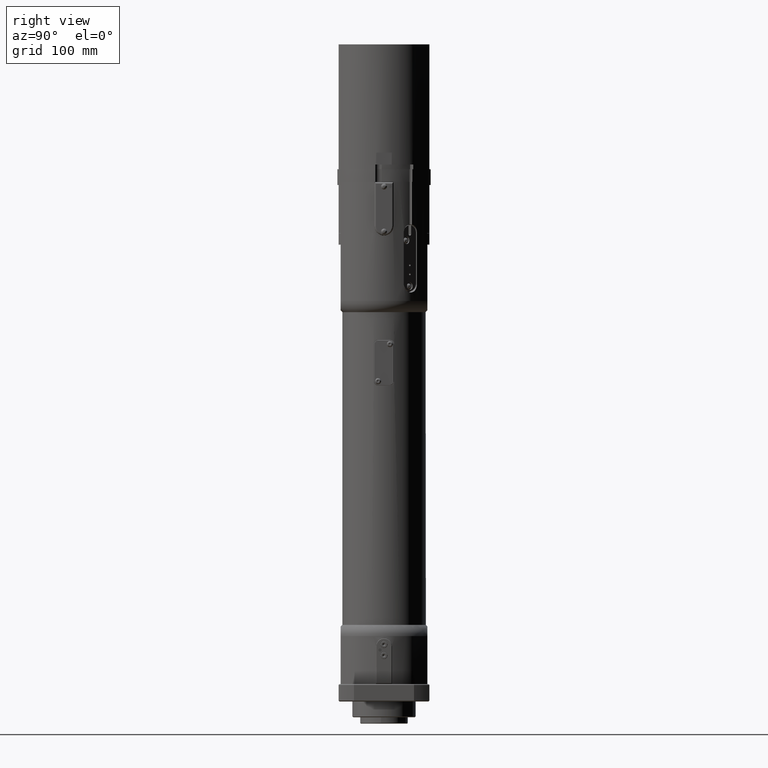
[diagram: clean part render]
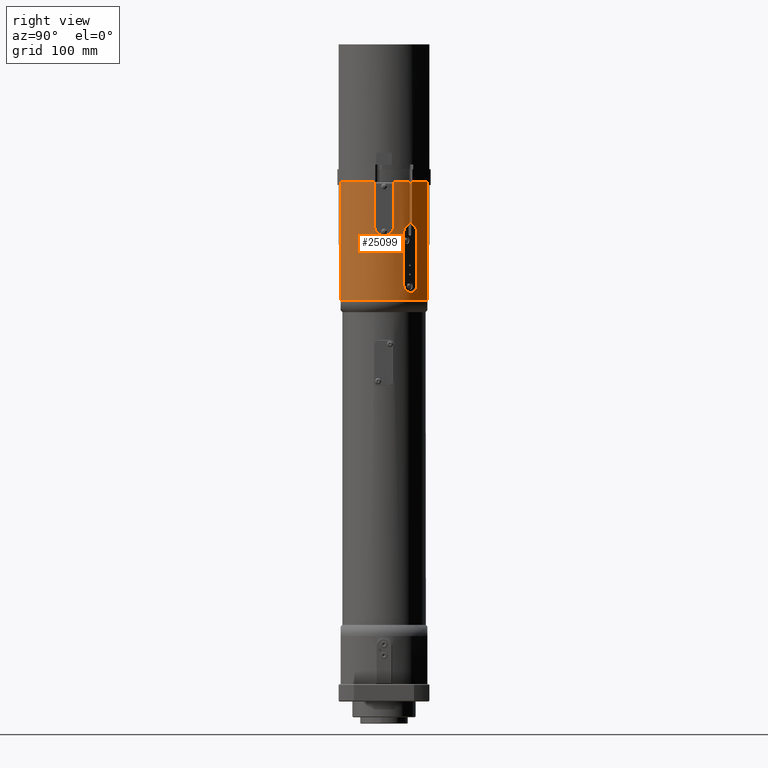
[diagram: same view with one face highlighted and labeled with its STEP entity id]
A machine part, right view. The second image highlights one B-rep face of the part: STEP entity #25099.
In plain terms, the highlighted cylindrical surface (partial cylindrical patch) has radius 59 mm, axis along (0, 0, 1).
Its self-contained STEP definition (entity closure, byte-faithful):
#474=B_SPLINE_CURVE_WITH_KNOTS('',3,(#36116,#36117,#36118,#36119,#36120,
#36121,#36122,#36123,#36124,#36125),.UNSPECIFIED.,.F.,.F.,(4,2,2,2,4),(5.5719923493288,
5.9930536188799,6.45390607613778,6.91489723326674,7.37588839039569),
 .UNSPECIFIED.);
#549=B_SPLINE_CURVE_WITH_KNOTS('',3,(#41970,#41971,#41972,#41973,#41974,
#41975,#41976,#41977,#41978,#41979),.UNSPECIFIED.,.F.,.F.,(4,2,2,2,4),(0.,
0.460991157128959,0.921982314257918,1.38283477151583,1.84368722877374),
 .UNSPECIFIED.);
#550=B_SPLINE_CURVE_WITH_KNOTS('',3,(#41996,#41997,#41998,#41999,#42000,
#42001,#42002,#42003,#42004,#42005),.UNSPECIFIED.,.F.,.F.,(4,2,2,2,4),(3.08042453699075,
3.46548356929964,3.85054260160854,4.23558970354734,4.42463661247969),
 .UNSPECIFIED.);
#551=B_SPLINE_CURVE_WITH_KNOTS('',3,(#42009,#42010,#42011,#42012,#42013,
#42014,#42015,#42016,#42017,#42018),.UNSPECIFIED.,.F.,.F.,(4,2,2,2,4),(-1.54021226849539,
-1.15516516655659,-0.770118064617793,-0.385059032308896,0.),
 .UNSPECIFIED.);
#552=B_SPLINE_CURVE_WITH_KNOTS('',3,(#42020,#42021,#42022,#42023,#42024,
#42025,#42026,#42027,#42028,#42029),.UNSPECIFIED.,.F.,.F.,(4,2,2,2,4),(0.,
0.385059032308893,0.770118064617785,1.15516516655657,1.54021226849536),
 .UNSPECIFIED.);
#553=B_SPLINE_CURVE_WITH_KNOTS('',3,(#42032,#42033,#42034,#42035,#42036,
#42037,#42038,#42039,#42040,#42041),.UNSPECIFIED.,.F.,.F.,(4,2,2,2,4),(1.73621246150661,
1.92525937043417,2.31030647237296,2.69536550468185,3.08042453699075),
 .UNSPECIFIED.);
#2035=LINE('',#41959,#3874);
#2036=LINE('',#41965,#3875);
#2037=LINE('',#41967,#3876);
#2038=LINE('',#41968,#3877);
#2039=LINE('',#41981,#3878);
#2040=LINE('',#41983,#3879);
#2041=LINE('',#41986,#3880);
#2042=LINE('',#41988,#3881);
#2043=LINE('',#41994,#3882);
#2044=LINE('',#42007,#3883);
#2045=LINE('',#42031,#3884);
#3874=VECTOR('',#33637,10.);
#3875=VECTOR('',#33642,10.);
#3876=VECTOR('',#33643,10.);
#3877=VECTOR('',#33644,10.);
#3878=VECTOR('',#33645,10.);
#3879=VECTOR('',#33646,10.);
#3880=VECTOR('',#33649,10.);
#3881=VECTOR('',#33650,10.);
#3882=VECTOR('',#33655,10.);
#3883=VECTOR('',#33656,10.);
#3884=VECTOR('',#33657,10.);
#6581=FACE_OUTER_BOUND('',#8257,.T.);
#8257=EDGE_LOOP('',(#20546,#20547,#20548,#20549,#20550,#20551,#20552,#20553,
#20554,#20555,#20556,#20557,#20558,#20559,#20560,#20561,#20562,#20563,#20564,
#20565,#20566,#20567,#20568));
#9624=CIRCLE('',#27560,59.0000000000015);
#9627=CIRCLE('',#27565,59.);
#9628=CIRCLE('',#27566,59.);
#9629=CIRCLE('',#27567,59.);
#9630=CIRCLE('',#27568,59.);
#9631=CIRCLE('',#27569,59.);
#10065=VERTEX_POINT('',#36113);
#10066=VERTEX_POINT('',#36115);
#11595=VERTEX_POINT('',#41872);
#11598=VERTEX_POINT('',#41911);
#11602=VERTEX_POINT('',#41957);
#11603=VERTEX_POINT('',#41958);
#11604=VERTEX_POINT('',#41960);
#11605=VERTEX_POINT('',#41962);
#11606=VERTEX_POINT('',#41964);
#11607=VERTEX_POINT('',#41966);
#11608=VERTEX_POINT('',#41969);
#11609=VERTEX_POINT('',#41980);
#11610=VERTEX_POINT('',#41982);
#11611=VERTEX_POINT('',#41984);
#11612=VERTEX_POINT('',#41987);
#11613=VERTEX_POINT('',#41989);
#11614=VERTEX_POINT('',#41991);
#11615=VERTEX_POINT('',#41993);
#11616=VERTEX_POINT('',#41995);
#11617=VERTEX_POINT('',#42006);
#11618=VERTEX_POINT('',#42008);
#11619=VERTEX_POINT('',#42019);
#11620=VERTEX_POINT('',#42030);
#12364=EDGE_CURVE('',#10065,#10066,#474,.T.);
#14702=EDGE_CURVE('',#11598,#11595,#9624,.T.);
#14707=EDGE_CURVE('',#11602,#11603,#2035,.T.);
#14708=EDGE_CURVE('',#11604,#11603,#9627,.T.);
#14709=EDGE_CURVE('',#11605,#11604,#9628,.T.);
#14710=EDGE_CURVE('',#11605,#11606,#2036,.T.);
#14711=EDGE_CURVE('',#11606,#11607,#2037,.T.);
#14712=EDGE_CURVE('',#11607,#10066,#2038,.T.);
#14713=EDGE_CURVE('',#11608,#10065,#549,.T.);
#14714=EDGE_CURVE('',#11608,#11609,#2039,.T.);
#14715=EDGE_CURVE('',#11609,#11610,#2040,.T.);
#14716=EDGE_CURVE('',#11611,#11610,#9629,.T.);
#14717=EDGE_CURVE('',#11611,#11595,#2041,.T.);
#14718=EDGE_CURVE('',#11598,#11612,#2042,.T.);
#14719=EDGE_CURVE('',#11613,#11612,#9630,.T.);
#14720=EDGE_CURVE('',#11614,#11613,#9631,.T.);
#14721=EDGE_CURVE('',#11614,#11615,#2043,.T.);
#14722=EDGE_CURVE('',#11616,#11615,#550,.T.);
#14723=EDGE_CURVE('',#11616,#11617,#2044,.T.);
#14724=EDGE_CURVE('',#11618,#11617,#551,.T.);
#14725=EDGE_CURVE('',#11619,#11618,#552,.T.);
#14726=EDGE_CURVE('',#11619,#11620,#2045,.T.);
#14727=EDGE_CURVE('',#11620,#11602,#553,.F.);
#20546=ORIENTED_EDGE('',*,*,#14707,.T.);
#20547=ORIENTED_EDGE('',*,*,#14708,.F.);
#20548=ORIENTED_EDGE('',*,*,#14709,.F.);
#20549=ORIENTED_EDGE('',*,*,#14710,.T.);
#20550=ORIENTED_EDGE('',*,*,#14711,.T.);
#20551=ORIENTED_EDGE('',*,*,#14712,.T.);
#20552=ORIENTED_EDGE('',*,*,#12364,.F.);
#20553=ORIENTED_EDGE('',*,*,#14713,.F.);
#20554=ORIENTED_EDGE('',*,*,#14714,.T.);
#20555=ORIENTED_EDGE('',*,*,#14715,.T.);
#20556=ORIENTED_EDGE('',*,*,#14716,.F.);
#20557=ORIENTED_EDGE('',*,*,#14717,.T.);
#20558=ORIENTED_EDGE('',*,*,#14702,.F.);
#20559=ORIENTED_EDGE('',*,*,#14718,.T.);
#20560=ORIENTED_EDGE('',*,*,#14719,.F.);
#20561=ORIENTED_EDGE('',*,*,#14720,.F.);
#20562=ORIENTED_EDGE('',*,*,#14721,.T.);
#20563=ORIENTED_EDGE('',*,*,#14722,.F.);
#20564=ORIENTED_EDGE('',*,*,#14723,.T.);
#20565=ORIENTED_EDGE('',*,*,#14724,.F.);
#20566=ORIENTED_EDGE('',*,*,#14725,.F.);
#20567=ORIENTED_EDGE('',*,*,#14726,.T.);
#20568=ORIENTED_EDGE('',*,*,#14727,.T.);
#22553=CYLINDRICAL_SURFACE('',#27564,59.);
#25099=ADVANCED_FACE('',(#6581),#22553,.T.);
#27560=AXIS2_PLACEMENT_3D('',#41947,#33625,#33626);
#27564=AXIS2_PLACEMENT_3D('',#41956,#33635,#33636);
#27565=AXIS2_PLACEMENT_3D('',#41961,#33638,#33639);
#27566=AXIS2_PLACEMENT_3D('',#41963,#33640,#33641);
#27567=AXIS2_PLACEMENT_3D('',#41985,#33647,#33648);
#27568=AXIS2_PLACEMENT_3D('',#41990,#33651,#33652);
#27569=AXIS2_PLACEMENT_3D('',#41992,#33653,#33654);
#33625=DIRECTION('center_axis',(-1.18602403724772E-15,-1.97215226305253E-31,
-1.));
#33626=DIRECTION('ref_axis',(-0.360601012346823,-0.932720166981741,4.27681468499192E-16));
#33635=DIRECTION('center_axis',(1.18602403724772E-15,1.97215226305253E-31,
1.));
#33636=DIRECTION('ref_axis',(-2.10942374678792E-15,-1.,2.67410476346106E-30));
#33637=DIRECTION('',(1.18602403724772E-15,1.97215226305253E-31,1.));
#33638=DIRECTION('center_axis',(1.18602403724772E-15,1.97215226305253E-31,
1.));
#33639=DIRECTION('ref_axis',(-2.10942374678792E-15,-1.,2.67410476346106E-30));
#33640=DIRECTION('center_axis',(1.18602403724772E-15,1.97215226305253E-31,
1.));
#33641=DIRECTION('ref_axis',(-2.10942374678792E-15,-1.,2.67410476346106E-30));
#33642=DIRECTION('',(-1.18602403724772E-15,-1.97215226305253E-31,-1.));
#33643=DIRECTION('',(-1.18602403724772E-15,-1.97215226305253E-31,-1.));
#33644=DIRECTION('',(-1.18602403724772E-15,-1.97215226305253E-31,-1.));
#33645=DIRECTION('',(1.18602403724772E-15,1.97215226305253E-31,1.));
#33646=DIRECTION('',(1.18602403724772E-15,1.97215226305253E-31,1.));
#33647=DIRECTION('center_axis',(1.18602403724772E-15,1.97215226305253E-31,
1.));
#33648=DIRECTION('ref_axis',(-2.10942374678792E-15,-1.,2.67410476346106E-30));
#33649=DIRECTION('',(-1.18602403724772E-15,-1.97215226305253E-31,-1.));
#33650=DIRECTION('',(1.18602403724772E-15,1.97215226305253E-31,1.));
#33651=DIRECTION('center_axis',(1.18602403724772E-15,1.97215226305253E-31,
1.));
#33652=DIRECTION('ref_axis',(-2.10942374678792E-15,-1.,2.67410476346106E-30));
#33653=DIRECTION('center_axis',(1.18602403724772E-15,1.97215226305253E-31,
1.));
#33654=DIRECTION('ref_axis',(-2.10942374678792E-15,-1.,2.67410476346106E-30));
#33655=DIRECTION('',(-1.18602403724772E-15,-1.97215226305253E-31,-1.));
#33656=DIRECTION('',(-1.18602403724772E-15,-1.97215226305253E-31,-1.));
#33657=DIRECTION('',(1.18602403724772E-15,1.97215226305253E-31,1.));
#36113=CARTESIAN_POINT('',(58.9996610159795,0.20000000000031,589.8));
#36115=CARTESIAN_POINT('',(57.7667724561487,12.0000000000012,601.993440859741));
#36116=CARTESIAN_POINT('Ctrl Pts',(58.9996610159795,0.19999999999742,589.8));
#36117=CARTESIAN_POINT('Ctrl Pts',(58.9948550997195,1.6177371510886,589.846508189686));
#36118=CARTESIAN_POINT('Ctrl Pts',(58.9344908549189,3.10169189211173,590.15508204622));
#36119=CARTESIAN_POINT('Ctrl Pts',(58.7158576809427,5.9764362385292,591.347476132513));
#36120=CARTESIAN_POINT('Ctrl Pts',(58.551149923172,7.34541198007273,592.285594851867));
#36121=CARTESIAN_POINT('Ctrl Pts',(58.2392239676251,9.50714173020504,594.447029691901));
#36122=CARTESIAN_POINT('Ctrl Pts',(58.0714641831327,10.4454622547956,595.816091098294));
#36123=CARTESIAN_POINT('Ctrl Pts',(57.8333786241499,11.6920040370167,598.820784570625));
#36124=CARTESIAN_POINT('Ctrl Pts',(57.7667724561487,12.0000000000012,600.456803669311));
#36125=CARTESIAN_POINT('Ctrl Pts',(57.7667724561487,12.0000000000012,601.993440859741));
#41872=CARTESIAN_POINT('',(21.3541565040689,-54.9999999999989,507.282856857087));
#41911=CARTESIAN_POINT('',(21.3541565040668,55.0000000000003,507.282856857087));
#41947=CARTESIAN_POINT('Origin',(6.04978043249157E-13,-1.06093161620234E-18,
507.282856857087));
#41956=CARTESIAN_POINT('Origin',(4.07413852901907E-12,3.05865382352607E-13,
493.));
#41957=CARTESIAN_POINT('',(49.4493476382863,32.1832567983469,604.001999800034));
#41958=CARTESIAN_POINT('',(49.4493476382816,32.1832567983421,658.));
#41959=CARTESIAN_POINT('',(49.4493476382868,32.183256798346,493.));
#41960=CARTESIAN_POINT('',(49.7205049208785,31.7627358772751,658.000000000005));
#41961=CARTESIAN_POINT('Origin',(4.26983249516495E-12,3.05865382352607E-13,
658.));
#41962=CARTESIAN_POINT('',(57.7667724561387,12.0000000000012,658.));
#41963=CARTESIAN_POINT('Origin',(4.26983249516495E-12,3.05865382352607E-13,
658.));
#41964=CARTESIAN_POINT('',(57.7667724561488,12.0000000000012,656.499999999986));
#41965=CARTESIAN_POINT('',(57.7667724561486,12.0000000000012,493.));
#41966=CARTESIAN_POINT('',(57.7667724561487,12.0000000000012,602.000000000005));
#41967=CARTESIAN_POINT('',(57.7667724561486,12.0000000000012,493.));
#41968=CARTESIAN_POINT('',(57.7667724561486,12.0000000000012,493.));
#41969=CARTESIAN_POINT('',(57.7667724561489,-11.9999999999997,602.));
#41970=CARTESIAN_POINT('Ctrl Pts',(57.7667724561489,-11.9999999999997,602.));
#41971=CARTESIAN_POINT('Ctrl Pts',(57.7667724561489,-11.9999999999997,600.46336280957));
#41972=CARTESIAN_POINT('Ctrl Pts',(57.83337862415,-11.692004037015,598.827343710884));
#41973=CARTESIAN_POINT('Ctrl Pts',(58.071464183133,-10.4454622547937,595.822650238553));
#41974=CARTESIAN_POINT('Ctrl Pts',(58.2392239676253,-9.50714173020309,594.45358883216));
#41975=CARTESIAN_POINT('Ctrl Pts',(58.5511499231722,-7.34541198007057,592.292153992126));
#41976=CARTESIAN_POINT('Ctrl Pts',(58.7158576809428,-5.97643623852692,591.354035272772));
#41977=CARTESIAN_POINT('Ctrl Pts',(58.9443553954066,-2.97198590339398,590.107841392389));
#41978=CARTESIAN_POINT('Ctrl Pts',(59.0048683883779,-1.33616603144579,589.8));
#41979=CARTESIAN_POINT('Ctrl Pts',(58.9996610159795,0.20000000000031,589.8));
#41980=CARTESIAN_POINT('',(57.766772456149,-11.9999999999997,656.500000000022));
#41981=CARTESIAN_POINT('',(57.7667724561488,-11.9999999999997,493.));
#41982=CARTESIAN_POINT('',(57.7667724561368,-11.9999999999997,658.));
#41983=CARTESIAN_POINT('',(57.7667724561488,-11.9999999999997,493.));
#41984=CARTESIAN_POINT('',(21.3541565040691,-54.9999999999989,658.));
#41985=CARTESIAN_POINT('Origin',(4.26983249516495E-12,3.05865382352607E-13,
658.));
#41986=CARTESIAN_POINT('',(21.3541565040689,-54.9999999999989,493.));
#41987=CARTESIAN_POINT('',(21.354156504067,55.0000000000003,658.));
#41988=CARTESIAN_POINT('',(21.3541565040668,55.0000000000003,493.));
#41989=CARTESIAN_POINT('',(46.8526227391247,35.8584960987229,658.000000000005));
#41990=CARTESIAN_POINT('Origin',(4.26983249516495E-12,3.05865382352607E-13,
658.));
#41991=CARTESIAN_POINT('',(47.1550418928784,35.4598649754988,658.));
#41992=CARTESIAN_POINT('Origin',(4.26983249516495E-12,3.05865382352607E-13,
658.));
#41993=CARTESIAN_POINT('',(47.1550418928802,35.4598649755062,604.001999800044));
#41994=CARTESIAN_POINT('',(47.1550418928831,35.4598649755022,493.));
#41995=CARTESIAN_POINT('',(41.751769997756,41.6868048914145,594.));
#41996=CARTESIAN_POINT('Ctrl Pts',(41.751769997756,41.6868048914145,594.));
#41997=CARTESIAN_POINT('Ctrl Pts',(41.751769997756,41.6868048914145,595.283530107696));
#41998=CARTESIAN_POINT('Ctrl Pts',(41.9376426634319,41.5031629502624,596.65081029939));
#41999=CARTESIAN_POINT('Ctrl Pts',(42.6732070601492,40.7464820888204,599.163091445456));
#42000=CARTESIAN_POINT('Ctrl Pts',(43.2207399638451,40.1720993096696,600.308319068244));
#42001=CARTESIAN_POINT('Ctrl Pts',(44.4403938613129,38.8185685979391,602.116631253857));
#42002=CARTESIAN_POINT('Ctrl Pts',(45.194164834302,37.9482852811896,602.901212023464));
#42003=CARTESIAN_POINT('Ctrl Pts',(46.3702326714465,36.4853883588665,603.67782521928));
#42004=CARTESIAN_POINT('Ctrl Pts',(46.7658240406887,35.9774525111108,603.872579866142));
#42005=CARTESIAN_POINT('Ctrl Pts',(47.1550418928802,35.4598649755062,604.001999800044));
#42006=CARTESIAN_POINT('',(41.7517699977559,41.6868048914145,528.));
#42007=CARTESIAN_POINT('',(41.7517699977559,41.6868048914145,493.));
#42008=CARTESIAN_POINT('',(48.3299706130435,33.8410097447279,517.8));
#42009=CARTESIAN_POINT('Ctrl Pts',(48.3299706130435,33.8410097447279,517.8));
#42010=CARTESIAN_POINT('Ctrl Pts',(47.593790797852,34.8923834803967,517.8));
#42011=CARTESIAN_POINT('Ctrl Pts',(46.7717514448598,35.9859438886329,518.057032951353));
#42012=CARTESIAN_POINT('Ctrl Pts',(45.1941648343019,37.9482852811896,519.098787976536));
#42013=CARTESIAN_POINT('Ctrl Pts',(44.4403938613127,38.8185685979391,519.883368746143));
#42014=CARTESIAN_POINT('Ctrl Pts',(43.220739963845,40.1720993096696,521.691680931756));
#42015=CARTESIAN_POINT('Ctrl Pts',(42.6732070601491,40.7464820888204,522.836908554544));
#42016=CARTESIAN_POINT('Ctrl Pts',(41.9376426634318,41.5031629502624,525.34918970061));
#42017=CARTESIAN_POINT('Ctrl Pts',(41.7517699977559,41.6868048914145,526.716469892304));
#42018=CARTESIAN_POINT('Ctrl Pts',(41.7517699977559,41.6868048914145,528.));
#42019=CARTESIAN_POINT('',(53.4527292993224,24.9761031879238,528.));
#42020=CARTESIAN_POINT('Ctrl Pts',(53.4527292993224,24.9761031879238,528.));
#42021=CARTESIAN_POINT('Ctrl Pts',(53.4527292993224,24.9761031879238,526.716469892304));
#42022=CARTESIAN_POINT('Ctrl Pts',(53.3437345181097,25.2135756032985,525.34918970061));
#42023=CARTESIAN_POINT('Ctrl Pts',(52.8842649367125,26.1635801356885,522.836908554544));
#42024=CARTESIAN_POINT('Ctrl Pts',(52.5317889598352,26.8745432453776,521.691680931756));
#42025=CARTESIAN_POINT('Ctrl Pts',(51.6770323388335,28.483577780762,519.883368746143));
#42026=CARTESIAN_POINT('Ctrl Pts',(51.1170383843067,29.4895452265707,519.098787976536));
#42027=CARTESIAN_POINT('Ctrl Pts',(49.8126070569086,31.6431520074978,518.057032951353));
#42028=CARTESIAN_POINT('Ctrl Pts',(49.0661504282345,32.7896360090599,517.8));
#42029=CARTESIAN_POINT('Ctrl Pts',(48.329970613043,33.8410097447287,517.8));
#42030=CARTESIAN_POINT('',(53.4527292993225,24.9761031879238,594.));
#42031=CARTESIAN_POINT('',(53.4527292993224,24.9761031879238,493.));
#42032=CARTESIAN_POINT('Ctrl Pts',(49.4493476382863,32.1832567983469,604.001999800034));
#42033=CARTESIAN_POINT('Ctrl Pts',(49.8026004805042,31.6404862916672,603.872579866132));
#42034=CARTESIAN_POINT('Ctrl Pts',(50.1446038316573,31.0950277097085,603.677825219273));
#42035=CARTESIAN_POINT('Ctrl Pts',(51.1170383843068,29.4895452265707,602.901212023464));
#42036=CARTESIAN_POINT('Ctrl Pts',(51.6770323388336,28.483577780762,602.116631253857));
#42037=CARTESIAN_POINT('Ctrl Pts',(52.5317889598353,26.8745432453776,600.308319068244));
#42038=CARTESIAN_POINT('Ctrl Pts',(52.8842649367126,26.1635801356885,599.163091445456));
#42039=CARTESIAN_POINT('Ctrl Pts',(53.3437345181097,25.2135756032985,596.65081029939));
#42040=CARTESIAN_POINT('Ctrl Pts',(53.4527292993225,24.9761031879238,595.283530107696));
#42041=CARTESIAN_POINT('Ctrl Pts',(53.4527292993225,24.9761031879238,594.));